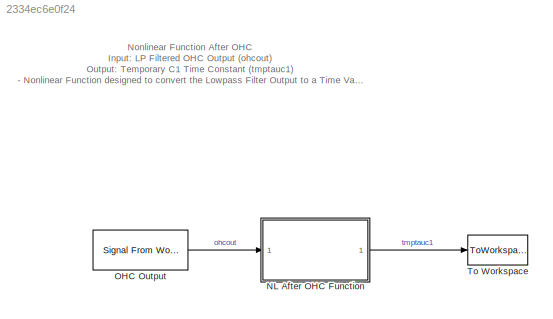
MODEL slx_2334ec6e0f24
KIND model
CONFIG AbsTol = auto
CONFIG EnableMultiTasking = off
CONFIG FixedStep = auto
CONFIG InitFcn = NL_After_OHC_Test_Parameters
CONFIG MaxStep = auto
CONFIG MinStep = auto
CONFIG RelTol = 1e-3
CONFIG SampleTimeConstraint = Unconstrained
CONFIG Solver = VariableStepAuto
CONFIG SolverName = VariableStepAuto
CONFIG StartTime = 0.0
CONFIG StopFcn = Verify_NL_After_OHC_Function
CONFIG StopTime = testtime
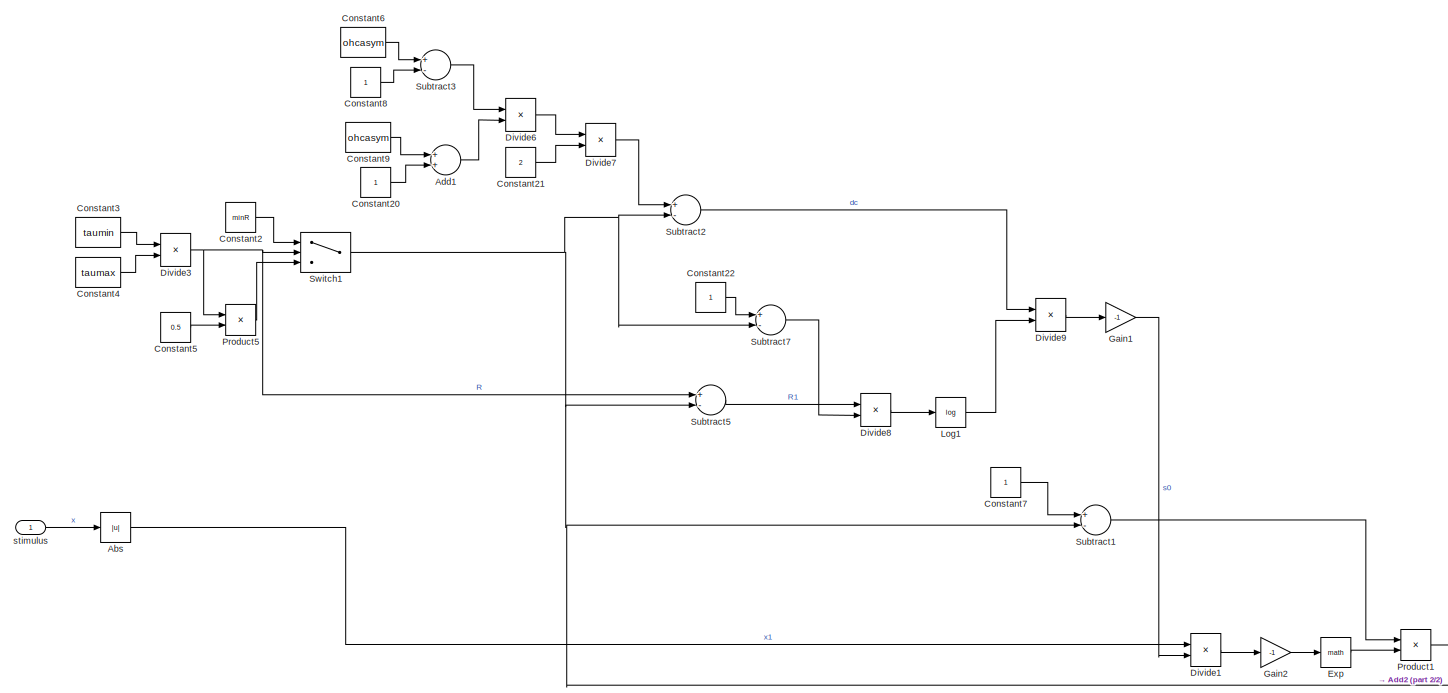
[diagram: NL After OHC Function - part 1/2, center side, full height]
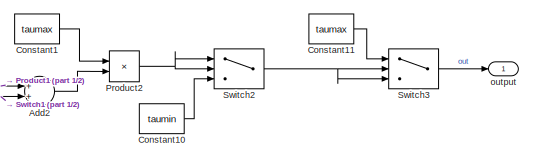
[diagram: NL After OHC Function - part 2/2, bottom right region]
BLOCK [SubSystem] NL After OHC Function
  Ports = [1, 1]
  RequestExecContextInheritance = off
  ShowPortLabels = none
BLOCK [Abs] NL After OHC Function/Abs
  SaturateOnIntegerOverflow = off
BLOCK [Sum] NL After OHC Function/Add1
  InputSameDT = off
  OutDataTypeStr = Inherit: Inherit via internal rule
  Ports = [2, 1]
  SaturateOnIntegerOverflow = off
BLOCK [Sum] NL After OHC Function/Add2
  InputSameDT = off
  OutDataTypeStr = Inherit: Inherit via internal rule
  Ports = [2, 1]
  SaturateOnIntegerOverflow = off
BLOCK [Constant] NL After OHC Function/Constant1
  SampleTime = -1
  Value = taumax
BLOCK [Constant] NL After OHC Function/Constant10
  SampleTime = -1
  Value = taumin
BLOCK [Constant] NL After OHC Function/Constant11
  SampleTime = -1
  Value = taumax
BLOCK [Constant] NL After OHC Function/Constant2
  SampleTime = -1
  Value = minR
BLOCK [Constant] NL After OHC Function/Constant20
  SampleTime = -1
BLOCK [Constant] NL After OHC Function/Constant21
  SampleTime = -1
  Value = 2
BLOCK [Constant] NL After OHC Function/Constant22
  SampleTime = -1
BLOCK [Constant] NL After OHC Function/Constant3
  SampleTime = -1
  Value = taumin
BLOCK [Constant] NL After OHC Function/Constant4
  SampleTime = -1
  Value = taumax
BLOCK [Constant] NL After OHC Function/Constant5
  SampleTime = -1
  Value = 0.5
BLOCK [Constant] NL After OHC Function/Constant6
  SampleTime = -1
  Value = ohcasym
BLOCK [Constant] NL After OHC Function/Constant7
  SampleTime = -1
BLOCK [Constant] NL After OHC Function/Constant8
  SampleTime = -1
BLOCK [Constant] NL After OHC Function/Constant9
  SampleTime = -1
  Value = ohcasym
BLOCK [Product] NL After OHC Function/Divide1
  InputSameDT = off
  Inputs = */
  OutDataTypeStr = Inherit: Inherit via internal rule
  Ports = [2, 1]
BLOCK [Product] NL After OHC Function/Divide3
  InputSameDT = off
  Inputs = */
  OutDataTypeStr = Inherit: Inherit via internal rule
  Ports = [2, 1]
BLOCK [Product] NL After OHC Function/Divide6
  InputSameDT = off
  Inputs = */
  OutDataTypeStr = Inherit: Inherit via internal rule
  Ports = [2, 1]
BLOCK [Product] NL After OHC Function/Divide7
  InputSameDT = off
  Inputs = */
  OutDataTypeStr = Inherit: Inherit via internal rule
  Ports = [2, 1]
BLOCK [Product] NL After OHC Function/Divide8
  InputSameDT = off
  Inputs = */
  OutDataTypeStr = Inherit: Inherit via internal rule
  Ports = [2, 1]
BLOCK [Product] NL After OHC Function/Divide9
  InputSameDT = off
  Inputs = */
  OutDataTypeStr = Inherit: Inherit via internal rule
  Ports = [2, 1]
BLOCK [Math] NL After OHC Function/Exp
  Ports = [1, 1]
BLOCK [Gain] NL After OHC Function/Gain1
  Gain = -1
  OutDataTypeStr = Inherit: Inherit via internal rule
  ParamDataTypeStr = Inherit: Inherit via internal rule
  SaturateOnIntegerOverflow = off
BLOCK [Gain] NL After OHC Function/Gain2
  Gain = -1
  OutDataTypeStr = Inherit: Inherit via internal rule
  ParamDataTypeStr = Inherit: Inherit via internal rule
  SaturateOnIntegerOverflow = off
BLOCK [Math] NL After OHC Function/Log1
  Operator = log
  Ports = [1, 1]
BLOCK [Product] NL After OHC Function/Product1
  InputSameDT = off
  OutDataTypeStr = Inherit: Inherit via internal rule
  Ports = [2, 1]
  RndMeth = Floor
  SaturateOnIntegerOverflow = off
BLOCK [Product] NL After OHC Function/Product2
  InputSameDT = off
  OutDataTypeStr = Inherit: Inherit via internal rule
  Ports = [2, 1]
  RndMeth = Floor
  SaturateOnIntegerOverflow = off
BLOCK [Product] NL After OHC Function/Product5
  InputSameDT = off
  OutDataTypeStr = Inherit: Inherit via internal rule
  Ports = [2, 1]
  RndMeth = Floor
  SaturateOnIntegerOverflow = off
BLOCK [Sum] NL After OHC Function/Subtract1
  InputSameDT = off
  Inputs = +-
  OutDataTypeStr = Inherit: Inherit via internal rule
  Ports = [2, 1]
  SaturateOnIntegerOverflow = off
BLOCK [Sum] NL After OHC Function/Subtract2
  InputSameDT = off
  Inputs = +-
  OutDataTypeStr = Inherit: Inherit via internal rule
  Ports = [2, 1]
  SaturateOnIntegerOverflow = off
BLOCK [Sum] NL After OHC Function/Subtract3
  InputSameDT = off
  Inputs = +-
  OutDataTypeStr = Inherit: Inherit via internal rule
  Ports = [2, 1]
  SaturateOnIntegerOverflow = off
BLOCK [Sum] NL After OHC Function/Subtract5
  InputSameDT = off
  Inputs = +-
  OutDataTypeStr = Inherit: Inherit via internal rule
  Ports = [2, 1]
  SaturateOnIntegerOverflow = off
BLOCK [Sum] NL After OHC Function/Subtract7
  InputSameDT = off
  Inputs = +-
  OutDataTypeStr = Inherit: Inherit via internal rule
  Ports = [2, 1]
  SaturateOnIntegerOverflow = off
BLOCK [Switch] NL After OHC Function/Switch1
  InputSameDT = off
  SaturateOnIntegerOverflow = off
  Threshold = minR
BLOCK [Switch] NL After OHC Function/Switch2
  InputSameDT = off
  SaturateOnIntegerOverflow = off
  Threshold = taumin
BLOCK [Switch] NL After OHC Function/Switch3
  Criteria = u2 > Threshold
  InputSameDT = off
  SaturateOnIntegerOverflow = off
  Threshold = taumax
BLOCK [Outport] NL After OHC Function/output
  IconDisplay = Port number
BLOCK [Inport] NL After OHC Function/stimulus
  IconDisplay = Port number
BLOCK [Reference] OHC Output  REF=dspsrcs4/Signal From
Workspace
  Ports = [0, 1]
  SourceBlock = dspsrcs4/Signal From\nWorkspace
  SourceProductBaseCode = DS
  SourceProductName = DSP System Toolbox
  SourceType = Signal From Workspace
BLOCK [ToWorkspace] To Workspace
  MaxDataPoints = inf
  Ports = [1]
  SampleTime = -1
  Save2DSignal = 2-D array (concatenate along first dimension)
  VariableName = tmptauc1
ANNOTATION (root): Nonlinear Function After OHC Input : LP Filtered OHC Output (ohcout) Output : Temporary C1 Time Constant (tmptauc1) - Nonlinear Function designed to convert the Lowpass Filter Output to a Time Varying Constant for the C1 Filter
LINE NL After OHC Function/Abs:1 -> NL After OHC Function/Divide1:1
LINE NL After OHC Function/Add1:1 -> NL After OHC Function/Divide6:2
LINE NL After OHC Function/Add2:1 -> NL After OHC Function/Product2:2
LINE NL After OHC Function/Constant10:1 -> NL After OHC Function/Switch2:3
LINE NL After OHC Function/Constant11:1 -> NL After OHC Function/Switch3:1
LINE NL After OHC Function/Constant1:1 -> NL After OHC Function/Product2:1
LINE NL After OHC Function/Constant20:1 -> NL After OHC Function/Add1:2
LINE NL After OHC Function/Constant21:1 -> NL After OHC Function/Divide7:2
LINE NL After OHC Function/Constant22:1 -> NL After OHC Function/Subtract7:1
LINE NL After OHC Function/Constant2:1 -> NL After OHC Function/Switch1:1
LINE NL After OHC Function/Constant3:1 -> NL After OHC Function/Divide3:1
LINE NL After OHC Function/Constant4:1 -> NL After OHC Function/Divide3:2
LINE NL After OHC Function/Constant5:1 -> NL After OHC Function/Product5:2
LINE NL After OHC Function/Constant6:1 -> NL After OHC Function/Subtract3:1
LINE NL After OHC Function/Constant7:1 -> NL After OHC Function/Subtract1:1
LINE NL After OHC Function/Constant8:1 -> NL After OHC Function/Subtract3:2
LINE NL After OHC Function/Constant9:1 -> NL After OHC Function/Add1:1
LINE NL After OHC Function/Divide1:1 -> NL After OHC Function/Gain2:1
NET NL After OHC Function/Divide3:1 -> NL After OHC Function/Product5:1, NL After OHC Function/Subtract5:1, NL After OHC Function/Switch1:2
LINE NL After OHC Function/Divide6:1 -> NL After OHC Function/Divide7:1
LINE NL After OHC Function/Divide7:1 -> NL After OHC Function/Subtract2:1
LINE NL After OHC Function/Divide8:1 -> NL After OHC Function/Log1:1
LINE NL After OHC Function/Divide9:1 -> NL After OHC Function/Gain1:1
LINE NL After OHC Function/Exp:1 -> NL After OHC Function/Product1:2
LINE NL After OHC Function/Gain1:1 -> NL After OHC Function/Divide1:2
LINE NL After OHC Function/Gain2:1 -> NL After OHC Function/Exp:1
LINE NL After OHC Function/Log1:1 -> NL After OHC Function/Divide9:2
LINE NL After OHC Function/Product1:1 -> NL After OHC Function/Add2:1
NET NL After OHC Function/Product2:1 -> NL After OHC Function/Switch2:1, NL After OHC Function/Switch2:2
LINE NL After OHC Function/Product5:1 -> NL After OHC Function/Switch1:3
LINE NL After OHC Function/Subtract1:1 -> NL After OHC Function/Product1:1
LINE NL After OHC Function/Subtract2:1 -> NL After OHC Function/Divide9:1
LINE NL After OHC Function/Subtract3:1 -> NL After OHC Function/Divide6:1
LINE NL After OHC Function/Subtract5:1 -> NL After OHC Function/Divide8:1
LINE NL After OHC Function/Subtract7:1 -> NL After OHC Function/Divide8:2
NET NL After OHC Function/Switch1:1 -> NL After OHC Function/Add2:2, NL After OHC Function/Subtract1:2, NL After OHC Function/Subtract2:2, NL After OHC Function/Subtract5:2, NL After OHC Function/Subtract7:2
NET NL After OHC Function/Switch2:1 -> NL After OHC Function/Switch3:2, NL After OHC Function/Switch3:3
LINE NL After OHC Function/Switch3:1 -> NL After OHC Function/output:1
LINE NL After OHC Function/stimulus:1 -> NL After OHC Function/Abs:1
LINE NL After OHC Function:1 -> To Workspace:1
LINE OHC Output:1 -> NL After OHC Function:1
note: NET lines group one-source signal fan-out (src -> all destinations, sorted); 1:1 wires keep LINE
